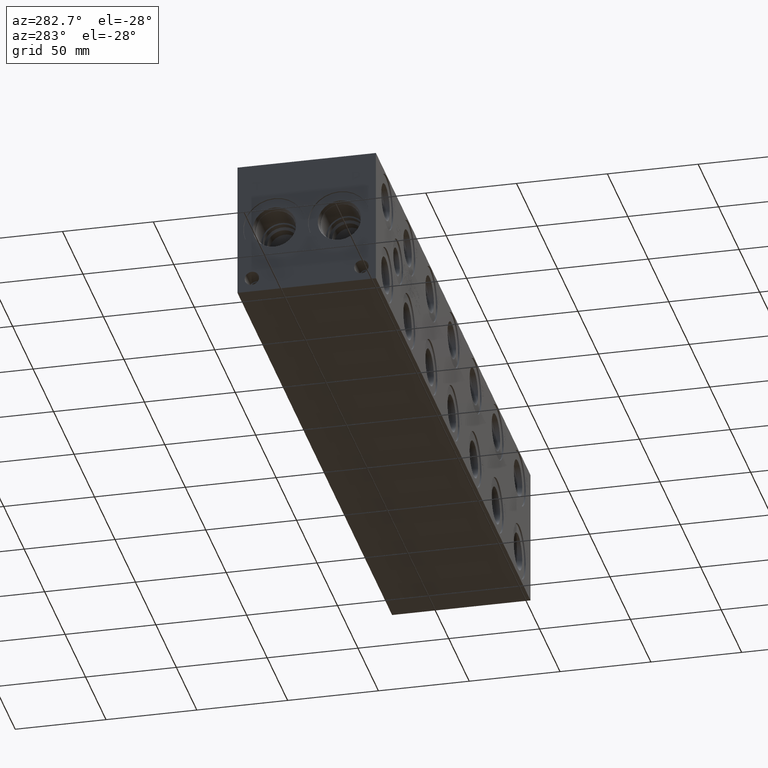
[diagram: clean part render]
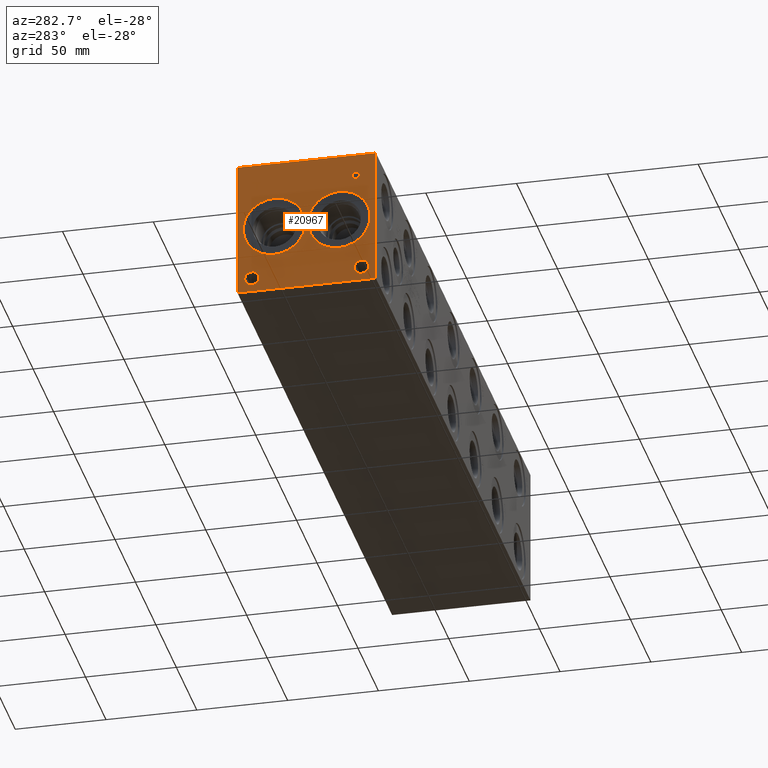
[diagram: same view with one face highlighted and labeled with its STEP entity id]
A machine part, auxiliary view. The second image highlights one B-rep face of the part: STEP entity #20967.
In plain terms, the highlighted planar face has unit normal (-1, 0, 0).
Its self-contained STEP definition (entity closure, byte-faithful):
#400=CIRCLE('',#21902,17.0688);
#401=CIRCLE('',#21903,17.0688);
#402=CIRCLE('',#21904,17.0688);
#403=CIRCLE('',#21905,17.0688);
#404=CIRCLE('',#21906,3.9624);
#405=CIRCLE('',#21907,3.9624);
#406=CIRCLE('',#21908,3.9624);
#407=CIRCLE('',#21909,3.9624);
#1205=FACE_BOUND('',#3774,.T.);
#1206=FACE_BOUND('',#3775,.T.);
#1207=FACE_BOUND('',#3776,.T.);
#1208=FACE_BOUND('',#3777,.T.);
#1209=FACE_BOUND('',#3778,.T.);
#1210=FACE_BOUND('',#3779,.T.);
#1793=PLANE('',#21901);
#2565=FACE_OUTER_BOUND('',#3773,.T.);
#3773=EDGE_LOOP('',(#17123,#17124,#17125,#17126));
#3774=EDGE_LOOP('',(#17127,#17128));
#3775=EDGE_LOOP('',(#17129,#17130));
#3776=EDGE_LOOP('',(#17131,#17132));
#3777=EDGE_LOOP('',(#17133,#17134));
#3778=EDGE_LOOP('',(#17135,#17136,#17137,#17138,#17139,#17140,#17141,#17142));
#3779=EDGE_LOOP('',(#17143,#17144,#17145,#17146,#17147,#17148,#17149,#17150,
#17151));
#4398=LINE('',#28419,#6151);
#5711=LINE('',#34962,#7464);
#5714=LINE('',#34968,#7467);
#5717=LINE('',#34974,#7470);
#5720=LINE('',#34980,#7473);
#5723=LINE('',#34986,#7476);
#5727=LINE('',#35028,#7480);
#5728=LINE('',#35030,#7481);
#5729=LINE('',#35031,#7482);
#5730=LINE('',#35050,#7483);
#5731=LINE('',#35052,#7484);
#5732=LINE('',#35054,#7485);
#5733=LINE('',#35056,#7486);
#5734=LINE('',#35058,#7487);
#5735=LINE('',#35060,#7488);
#5736=LINE('',#35062,#7489);
#5737=LINE('',#35063,#7490);
#6151=VECTOR('',#23127,10.);
#7464=VECTOR('',#25374,10.);
#7467=VECTOR('',#25379,10.);
#7470=VECTOR('',#25384,10.);
#7473=VECTOR('',#25389,10.);
#7476=VECTOR('',#25394,10.);
#7480=VECTOR('',#25402,10.);
#7481=VECTOR('',#25403,10.);
#7482=VECTOR('',#25404,10.);
#7483=VECTOR('',#25421,10.);
#7484=VECTOR('',#25422,10.);
#7485=VECTOR('',#25423,10.);
#7486=VECTOR('',#25424,10.);
#7487=VECTOR('',#25425,10.);
#7488=VECTOR('',#25426,10.);
#7489=VECTOR('',#25427,10.);
#7490=VECTOR('',#25428,10.);
#8325=B_SPLINE_CURVE_WITH_KNOTS('',2,(#34929,#34930,#34931,#34932),
 .UNSPECIFIED.,.F.,.F.,(3,1,3),(0.,1.,2.),.UNSPECIFIED.);
#8327=B_SPLINE_CURVE_WITH_KNOTS('',2,(#34950,#34951,#34952,#34953),
 .UNSPECIFIED.,.F.,.F.,(3,1,3),(0.,1.,2.),.UNSPECIFIED.);
#8329=B_SPLINE_CURVE_WITH_KNOTS('',2,(#34999,#35000,#35001,#35002),
 .UNSPECIFIED.,.F.,.F.,(3,1,3),(0.,1.,2.),.UNSPECIFIED.);
#8331=B_SPLINE_CURVE_WITH_KNOTS('',2,(#35017,#35018,#35019,#35020),
 .UNSPECIFIED.,.F.,.F.,(3,1,3),(0.,1.,2.),.UNSPECIFIED.);
#8381=VERTEX_POINT('',#28412);
#8384=VERTEX_POINT('',#28417);
#9589=VERTEX_POINT('',#34927);
#9590=VERTEX_POINT('',#34928);
#9593=VERTEX_POINT('',#34949);
#9595=VERTEX_POINT('',#34961);
#9597=VERTEX_POINT('',#34967);
#9599=VERTEX_POINT('',#34973);
#9601=VERTEX_POINT('',#34979);
#9603=VERTEX_POINT('',#34985);
#9605=VERTEX_POINT('',#34998);
#9607=VERTEX_POINT('',#35027);
#9608=VERTEX_POINT('',#35029);
#9609=VERTEX_POINT('',#35032);
#9610=VERTEX_POINT('',#35033);
#9611=VERTEX_POINT('',#35036);
#9612=VERTEX_POINT('',#35037);
#9613=VERTEX_POINT('',#35040);
#9614=VERTEX_POINT('',#35041);
#9615=VERTEX_POINT('',#35044);
#9616=VERTEX_POINT('',#35045);
#9617=VERTEX_POINT('',#35048);
#9618=VERTEX_POINT('',#35049);
#9619=VERTEX_POINT('',#35051);
#9620=VERTEX_POINT('',#35053);
#9621=VERTEX_POINT('',#35055);
#9622=VERTEX_POINT('',#35057);
#9623=VERTEX_POINT('',#35059);
#9624=VERTEX_POINT('',#35061);
#10504=EDGE_CURVE('',#8381,#8384,#4398,.T.);
#12292=EDGE_CURVE('',#9589,#9590,#8325,.T.);
#12296=EDGE_CURVE('',#9593,#9589,#8327,.T.);
#12299=EDGE_CURVE('',#9595,#9593,#5711,.T.);
#12302=EDGE_CURVE('',#9597,#9595,#5714,.T.);
#12305=EDGE_CURVE('',#9599,#9597,#5717,.T.);
#12308=EDGE_CURVE('',#9601,#9599,#5720,.T.);
#12311=EDGE_CURVE('',#9603,#9601,#5723,.T.);
#12314=EDGE_CURVE('',#9605,#9603,#8329,.T.);
#12317=EDGE_CURVE('',#9590,#9605,#8331,.T.);
#12319=EDGE_CURVE('',#9607,#8381,#5727,.T.);
#12320=EDGE_CURVE('',#9608,#8384,#5728,.T.);
#12321=EDGE_CURVE('',#9607,#9608,#5729,.T.);
#12322=EDGE_CURVE('',#9609,#9610,#400,.T.);
#12323=EDGE_CURVE('',#9610,#9609,#401,.T.);
#12324=EDGE_CURVE('',#9611,#9612,#402,.T.);
#12325=EDGE_CURVE('',#9612,#9611,#403,.T.);
#12326=EDGE_CURVE('',#9613,#9614,#404,.T.);
#12327=EDGE_CURVE('',#9614,#9613,#405,.T.);
#12328=EDGE_CURVE('',#9615,#9616,#406,.T.);
#12329=EDGE_CURVE('',#9616,#9615,#407,.T.);
#12330=EDGE_CURVE('',#9617,#9618,#5730,.T.);
#12331=EDGE_CURVE('',#9618,#9619,#5731,.T.);
#12332=EDGE_CURVE('',#9619,#9620,#5732,.T.);
#12333=EDGE_CURVE('',#9620,#9621,#5733,.T.);
#12334=EDGE_CURVE('',#9621,#9622,#5734,.T.);
#12335=EDGE_CURVE('',#9622,#9623,#5735,.T.);
#12336=EDGE_CURVE('',#9623,#9624,#5736,.T.);
#12337=EDGE_CURVE('',#9624,#9617,#5737,.T.);
#17123=ORIENTED_EDGE('',*,*,#12319,.T.);
#17124=ORIENTED_EDGE('',*,*,#10504,.T.);
#17125=ORIENTED_EDGE('',*,*,#12320,.F.);
#17126=ORIENTED_EDGE('',*,*,#12321,.F.);
#17127=ORIENTED_EDGE('',*,*,#12322,.T.);
#17128=ORIENTED_EDGE('',*,*,#12323,.T.);
#17129=ORIENTED_EDGE('',*,*,#12324,.T.);
#17130=ORIENTED_EDGE('',*,*,#12325,.T.);
#17131=ORIENTED_EDGE('',*,*,#12326,.T.);
#17132=ORIENTED_EDGE('',*,*,#12327,.T.);
#17133=ORIENTED_EDGE('',*,*,#12328,.T.);
#17134=ORIENTED_EDGE('',*,*,#12329,.T.);
#17135=ORIENTED_EDGE('',*,*,#12330,.T.);
#17136=ORIENTED_EDGE('',*,*,#12331,.T.);
#17137=ORIENTED_EDGE('',*,*,#12332,.T.);
#17138=ORIENTED_EDGE('',*,*,#12333,.T.);
#17139=ORIENTED_EDGE('',*,*,#12334,.T.);
#17140=ORIENTED_EDGE('',*,*,#12335,.T.);
#17141=ORIENTED_EDGE('',*,*,#12336,.T.);
#17142=ORIENTED_EDGE('',*,*,#12337,.T.);
#17143=ORIENTED_EDGE('',*,*,#12292,.T.);
#17144=ORIENTED_EDGE('',*,*,#12317,.T.);
#17145=ORIENTED_EDGE('',*,*,#12314,.T.);
#17146=ORIENTED_EDGE('',*,*,#12311,.T.);
#17147=ORIENTED_EDGE('',*,*,#12308,.T.);
#17148=ORIENTED_EDGE('',*,*,#12305,.T.);
#17149=ORIENTED_EDGE('',*,*,#12302,.T.);
#17150=ORIENTED_EDGE('',*,*,#12299,.T.);
#17151=ORIENTED_EDGE('',*,*,#12296,.T.);
#20967=ADVANCED_FACE('',(#2565,#1205,#1206,#1207,#1208,#1209,#1210),#1793,
 .T.);
#21901=AXIS2_PLACEMENT_3D('',#35026,#25400,#25401);
#21902=AXIS2_PLACEMENT_3D('',#35034,#25405,#25406);
#21903=AXIS2_PLACEMENT_3D('',#35035,#25407,#25408);
#21904=AXIS2_PLACEMENT_3D('',#35038,#25409,#25410);
#21905=AXIS2_PLACEMENT_3D('',#35039,#25411,#25412);
#21906=AXIS2_PLACEMENT_3D('',#35042,#25413,#25414);
#21907=AXIS2_PLACEMENT_3D('',#35043,#25415,#25416);
#21908=AXIS2_PLACEMENT_3D('',#35046,#25417,#25418);
#21909=AXIS2_PLACEMENT_3D('',#35047,#25419,#25420);
#23127=DIRECTION('',(0.,0.,1.));
#25374=DIRECTION('',(0.,-1.,0.));
#25379=DIRECTION('',(0.,-3.14708893596576E-15,1.));
#25384=DIRECTION('',(0.,1.,0.));
#25389=DIRECTION('',(0.,3.75218139805001E-15,-1.));
#25394=DIRECTION('',(0.,1.,0.));
#25400=DIRECTION('center_axis',(-1.,0.,0.));
#25401=DIRECTION('ref_axis',(0.,-1.,0.));
#25402=DIRECTION('',(0.,-1.,0.));
#25403=DIRECTION('',(0.,-1.,0.));
#25404=DIRECTION('',(0.,0.,1.));
#25405=DIRECTION('center_axis',(1.,0.,0.));
#25406=DIRECTION('ref_axis',(0.,0.,1.));
#25407=DIRECTION('center_axis',(1.,0.,0.));
#25408=DIRECTION('ref_axis',(0.,0.,1.));
#25409=DIRECTION('center_axis',(1.,0.,0.));
#25410=DIRECTION('ref_axis',(0.,0.,1.));
#25411=DIRECTION('center_axis',(1.,0.,0.));
#25412=DIRECTION('ref_axis',(0.,0.,1.));
#25413=DIRECTION('center_axis',(1.,0.,0.));
#25414=DIRECTION('ref_axis',(0.,1.,0.));
#25415=DIRECTION('center_axis',(1.,0.,0.));
#25416=DIRECTION('ref_axis',(0.,1.,0.));
#25417=DIRECTION('center_axis',(1.,0.,0.));
#25418=DIRECTION('ref_axis',(0.,1.,0.));
#25419=DIRECTION('center_axis',(1.,0.,0.));
#25420=DIRECTION('ref_axis',(0.,1.,0.));
#25421=DIRECTION('',(0.,1.,1.05244112384329E-14));
#25422=DIRECTION('',(0.,-3.17280044688052E-15,1.));
#25423=DIRECTION('',(0.,1.,4.16909044227779E-15));
#25424=DIRECTION('',(0.,0.,1.));
#25425=DIRECTION('',(0.,-1.,-3.47984565141735E-15));
#25426=DIRECTION('',(0.,0.,-1.));
#25427=DIRECTION('',(0.,1.,0.));
#25428=DIRECTION('',(0.,3.17280044688052E-15,-1.));
#28412=CARTESIAN_POINT('',(0.,0.,0.));
#28417=CARTESIAN_POINT('',(0.,0.,76.2));
#28419=CARTESIAN_POINT('',(0.,0.,0.));
#34927=CARTESIAN_POINT('',(0.,9.59318279764059,65.4850181439707));
#34928=CARTESIAN_POINT('',(0.,8.83674034546799,63.966987372604));
#34929=CARTESIAN_POINT('Ctrl Pts',(0.,9.59318279764059,65.4850181439707));
#34930=CARTESIAN_POINT('Ctrl Pts',(0.,9.23811797315141,65.2431623939564));
#34931=CARTESIAN_POINT('Ctrl Pts',(0.,8.83674034546799,64.4970116758269));
#34932=CARTESIAN_POINT('Ctrl Pts',(0.,8.83674034546799,63.966987372604));
#34949=CARTESIAN_POINT('',(0.,11.2552978456117,65.8812499046326));
#34950=CARTESIAN_POINT('Ctrl Pts',(0.,11.2552978456117,65.8812499046326));
#34951=CARTESIAN_POINT('Ctrl Pts',(0.,10.6892524732376,65.8812499046326));
#34952=CARTESIAN_POINT('Ctrl Pts',(0.,9.89678895191394,65.6959986918556));
#34953=CARTESIAN_POINT('Ctrl Pts',(0.,9.59318279764059,65.4850181439707));
#34961=CARTESIAN_POINT('',(0.,12.8505166223022,65.8812499046326));
#34962=CARTESIAN_POINT('',(0.,44.5252583111511,65.8812499046326));
#34967=CARTESIAN_POINT('',(0.,12.8505166223022,59.53125));
#34968=CARTESIAN_POINT('',(0.,12.8505166223023,29.7656249999999));
#34973=CARTESIAN_POINT('',(0.,12.0065944307627,59.53125));
#34974=CARTESIAN_POINT('',(0.,44.1032972153814,59.53125));
#34979=CARTESIAN_POINT('',(0.,12.0065944307627,61.8983488299279));
#34980=CARTESIAN_POINT('',(0.,12.0065944307628,30.9491744149638));
#34985=CARTESIAN_POINT('',(0.,11.2913189147628,61.8983488299279));
#34986=CARTESIAN_POINT('',(0.,43.7456594573814,61.8983488299279));
#34998=CARTESIAN_POINT('',(0.,9.39249398379889,62.5570198086904));
#34999=CARTESIAN_POINT('Ctrl Pts',(0.,9.39249398379889,62.5570198086904));
#35000=CARTESIAN_POINT('Ctrl Pts',(0.,9.72182947318016,62.2328301863307));
#35001=CARTESIAN_POINT('Ctrl Pts',(0.,10.6120644679139,61.8983488299279));
#35002=CARTESIAN_POINT('Ctrl Pts',(0.,11.2913189147628,61.8983488299279));
#35017=CARTESIAN_POINT('Ctrl Pts',(0.,8.83674034546799,63.966987372604));
#35018=CARTESIAN_POINT('Ctrl Pts',(0.,8.83674034546799,63.5553180108774));
#35019=CARTESIAN_POINT('Ctrl Pts',(0.,9.13005476569819,62.8143131597695));
#35020=CARTESIAN_POINT('Ctrl Pts',(0.,9.39249398379889,62.5570198086904));
#35026=CARTESIAN_POINT('Origin',(0.,76.2,0.));
#35027=CARTESIAN_POINT('',(0.,76.2,0.));
#35028=CARTESIAN_POINT('',(0.,76.2,0.));
#35029=CARTESIAN_POINT('',(0.,76.2,76.2));
#35030=CARTESIAN_POINT('',(0.,76.2,76.2));
#35031=CARTESIAN_POINT('',(0.,76.2,0.));
#35032=CARTESIAN_POINT('',(0.,55.9562,55.1688));
#35033=CARTESIAN_POINT('',(0.,55.9562,21.0312));
#35034=CARTESIAN_POINT('Origin',(0.,55.9562,38.1));
#35035=CARTESIAN_POINT('Origin',(0.,55.9562,38.1));
#35036=CARTESIAN_POINT('',(0.,20.2438,55.1688));
#35037=CARTESIAN_POINT('',(0.,20.2438,21.0312));
#35038=CARTESIAN_POINT('Origin',(0.,20.2438,38.1));
#35039=CARTESIAN_POINT('Origin',(0.,20.2438,38.1));
#35040=CARTESIAN_POINT('',(0.,72.2376,7.92480000000001));
#35041=CARTESIAN_POINT('',(0.,64.3128,7.92480000000001));
#35042=CARTESIAN_POINT('Origin',(0.,68.2752,7.92480000000001));
#35043=CARTESIAN_POINT('Origin',(0.,68.2752,7.92480000000001));
#35044=CARTESIAN_POINT('',(0.,11.8872,7.92480000000001));
#35045=CARTESIAN_POINT('',(0.,3.9624,7.92480000000001));
#35046=CARTESIAN_POINT('Origin',(0.,7.9248,7.92480000000001));
#35047=CARTESIAN_POINT('Origin',(0.,7.9248,7.92480000000001));
#35048=CARTESIAN_POINT('',(0.,65.293334728547,59.53125));
#35049=CARTESIAN_POINT('',(0.,66.1372569200865,59.53125));
#35050=CARTESIAN_POINT('',(0.,70.7466673642732,59.5312500000001));
#35051=CARTESIAN_POINT('',(0.,66.1372569200865,65.1299533194816));
#35052=CARTESIAN_POINT('',(0.,66.1372569200866,29.765625));
#35053=CARTESIAN_POINT('',(0.,68.2676458670216,65.1299533194816));
#35054=CARTESIAN_POINT('',(0.,71.1686284600431,65.1299533194816));
#35055=CARTESIAN_POINT('',(0.,68.2676458670216,65.8812499046326));
#35056=CARTESIAN_POINT('',(0.,68.2676458670216,32.5649766597408));
#35057=CARTESIAN_POINT('',(0.,63.1629457816119,65.8812499046326));
#35058=CARTESIAN_POINT('',(0.,72.2338229335107,65.8812499046326));
#35059=CARTESIAN_POINT('',(0.,63.1629457816119,65.1299533194816));
#35060=CARTESIAN_POINT('',(0.,63.1629457816119,32.9406249523163));
#35061=CARTESIAN_POINT('',(0.,65.293334728547,65.1299533194816));
#35062=CARTESIAN_POINT('',(0.,69.681472890806,65.1299533194816));
#35063=CARTESIAN_POINT('',(0.,65.2933347285471,32.5649766597408));